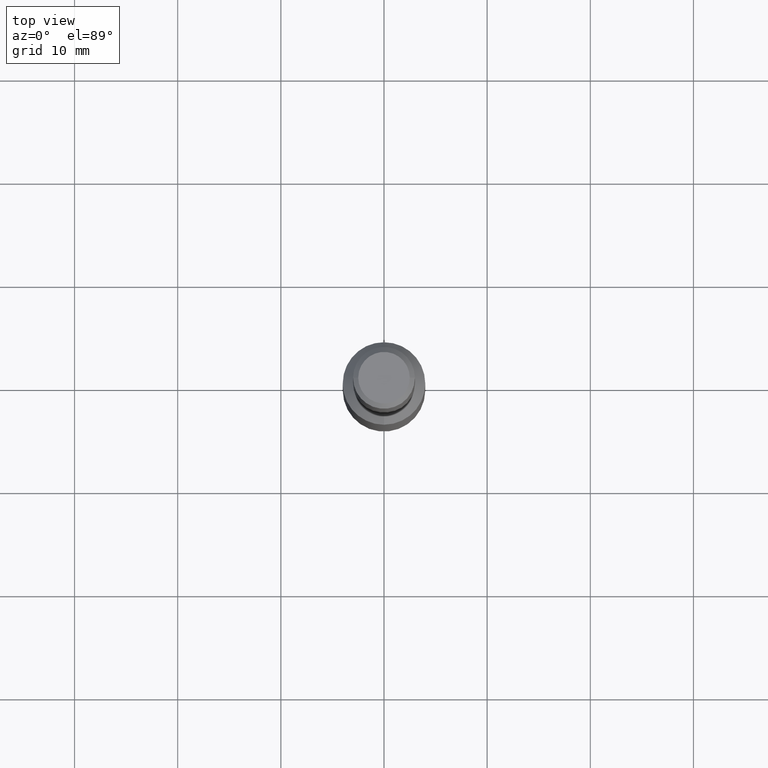
[diagram: clean part render]
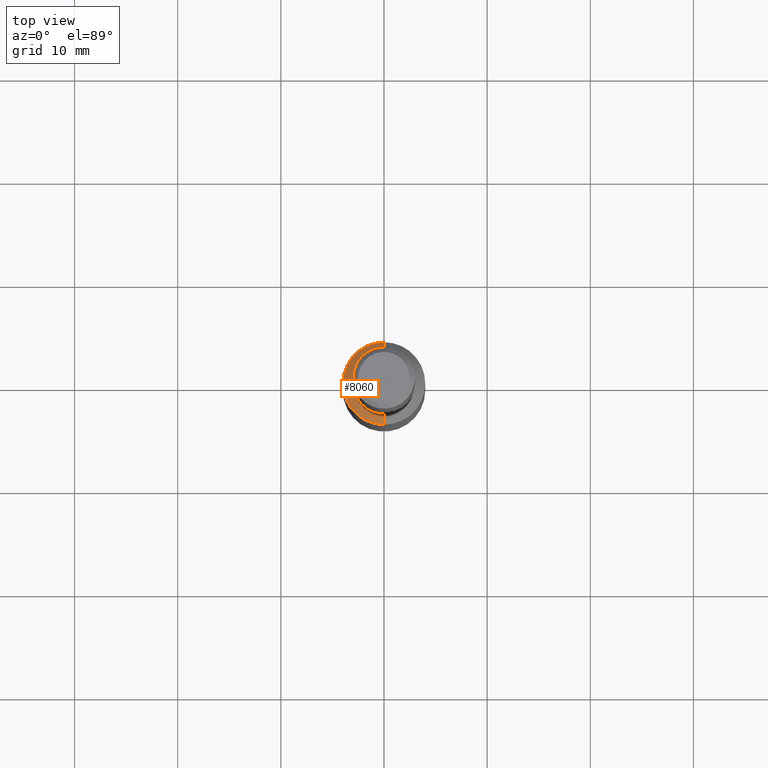
[diagram: same view with one face highlighted and labeled with its STEP entity id]
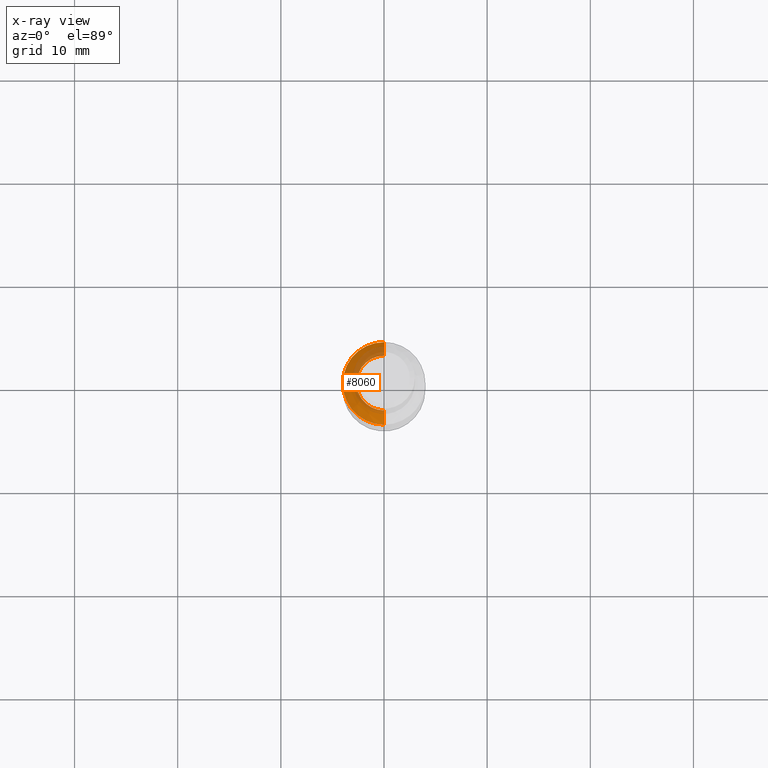
[diagram: x-ray of the same camera — body ghosted, the highlighted face saturated]
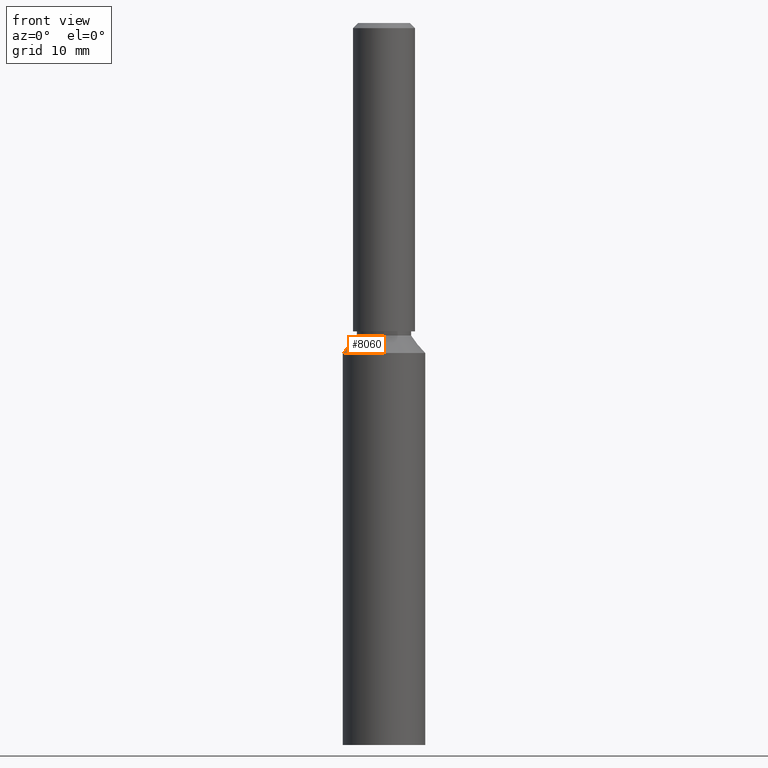
[diagram: same view with one face highlighted and labeled with its STEP entity id]
A machine part, top view. The second image highlights one B-rep face of the part: STEP entity #8060.
The next image is the same camera in x-ray: the body ghosted, the highlighted face saturated — about 30% of this face is hidden behind the body in this view.
A second angle (front view) of the same face is appended — the face is thin or edge-on in the first view.
In plain terms, the highlighted conical surface has half-angle 38.454 deg.
Its self-contained STEP definition (entity closure, byte-faithful):
#576 = EDGE_LOOP ( 'NONE', ( #9763, #10897, #4986, #8685, #4913 ) ) ;
#1038 = CARTESIAN_POINT ( 'NONE',  ( 0.0000000000000000000, -7.477419753763976000E-017, 38.00000000000000000 ) ) ;
#1325 = DIRECTION ( 'NONE',  ( -0.0000000000000000000, 1.967742040464204400E-018, -1.000000000000000000 ) ) ;
#1610 = DIRECTION ( 'NONE',  ( 0.0000000000000000000, 0.6218821436015845600, -0.7831108474982950700 ) ) ;
#2075 = VECTOR ( 'NONE', #10215, 1000.000000000000200 ) ;
#2601 = AXIS2_PLACEMENT_3D ( 'NONE', #10453, #1325, #11476 ) ;
#2665 = CARTESIAN_POINT ( 'NONE',  ( 0.0000000000000000000, 2.650000000000005200, 39.70000000000000300 ) ) ;
#2880 = LINE ( 'NONE', #7650, #5236 ) ;
#3121 = CARTESIAN_POINT ( 'NONE',  ( 0.0000000000000000000, 4.000000000000005300, 38.00000000000000000 ) ) ;
#3197 = AXIS2_PLACEMENT_3D ( 'NONE', #3708, #9657, #6775 ) ;
#3708 = CARTESIAN_POINT ( 'NONE',  ( 0.0000000000000000000, -7.811935900642893000E-017, 39.70000000000000300 ) ) ;
#4086 = DIRECTION ( 'NONE',  ( -0.0000000000000000000, 1.967742040464204400E-018, -1.000000000000000000 ) ) ;
#4370 = EDGE_CURVE ( 'NONE', #10545, #6575, #2880, .T. ) ;
#4522 = CONICAL_SURFACE ( 'NONE', #2601, 4.000000000000005300, 0.6711438354360067500 ) ;
#4563 = CIRCLE ( 'NONE', #12453, 4.000000000000005300 ) ;
#4907 = EDGE_CURVE ( 'NONE', #7473, #5155, #9502, .T. ) ;
#4913 = ORIENTED_EDGE ( 'NONE', *, *, #6639, .F. ) ;
#4986 = ORIENTED_EDGE ( 'NONE', *, *, #4370, .T. ) ;
#5155 = VERTEX_POINT ( 'NONE', #12549 ) ;
#5236 = VECTOR ( 'NONE', #1610, 1000.000000000000200 ) ;
#5569 = VERTEX_POINT ( 'NONE', #12519 ) ;
#6575 = VERTEX_POINT ( 'NONE', #3121 ) ;
#6639 = EDGE_CURVE ( 'NONE', #5155, #5569, #4563, .T. ) ;
#6775 = DIRECTION ( 'NONE',  ( 0.0000000000000000000, 1.000000000000000000, 0.0000000000000000000 ) ) ;
#6900 = CIRCLE ( 'NONE', #3197, 2.650000000000005200 ) ;
#7039 = AXIS2_PLACEMENT_3D ( 'NONE', #1038, #13058, #11047 ) ;
#7473 = VERTEX_POINT ( 'NONE', #7843 ) ;
#7650 = CARTESIAN_POINT ( 'NONE',  ( 0.0000000000000000000, 4.000000000000005300, 38.00000000000000000 ) ) ;
#7843 = CARTESIAN_POINT ( 'NONE',  ( 3.245314017740492400E-016, -2.650000000000005200, 39.70000000000000300 ) ) ;
#8060 = ADVANCED_FACE ( 'NONE', ( #9294 ), #4522, .T. ) ;
#8138 = CARTESIAN_POINT ( 'NONE',  ( 4.898587196589419700E-016, -4.000000000000005300, 38.00000000000000000 ) ) ;
#8202 = CARTESIAN_POINT ( 'NONE',  ( 0.0000000000000000000, -7.477419753763976000E-017, 38.00000000000000000 ) ) ;
#8685 = ORIENTED_EDGE ( 'NONE', *, *, #11907, .F. ) ;
#9294 = FACE_OUTER_BOUND ( 'NONE', #576, .T. ) ;
#9502 = LINE ( 'NONE', #8138, #2075 ) ;
#9657 = DIRECTION ( 'NONE',  ( -0.0000000000000000000, 1.967742040464204400E-018, -1.000000000000000000 ) ) ;
#9763 = ORIENTED_EDGE ( 'NONE', *, *, #4907, .F. ) ;
#10215 = DIRECTION ( 'NONE',  ( 7.615859766085753400E-017, -0.6218821436015845600, -0.7831108474982950700 ) ) ;
#10453 = CARTESIAN_POINT ( 'NONE',  ( 0.0000000000000000000, -7.477419753763976000E-017, 38.00000000000000000 ) ) ;
#10545 = VERTEX_POINT ( 'NONE', #2665 ) ;
#10897 = ORIENTED_EDGE ( 'NONE', *, *, #12003, .T. ) ;
#11047 = DIRECTION ( 'NONE',  ( 0.0000000000000000000, 1.000000000000000000, 0.0000000000000000000 ) ) ;
#11205 = DIRECTION ( 'NONE',  ( 0.0000000000000000000, 1.000000000000000000, 0.0000000000000000000 ) ) ;
#11476 = DIRECTION ( 'NONE',  ( 0.0000000000000000000, 1.000000000000000000, 0.0000000000000000000 ) ) ;
#11907 = EDGE_CURVE ( 'NONE', #5569, #6575, #12903, .T. ) ;
#12003 = EDGE_CURVE ( 'NONE', #7473, #10545, #6900, .T. ) ;
#12453 = AXIS2_PLACEMENT_3D ( 'NONE', #8202, #4086, #11205 ) ;
#12519 = CARTESIAN_POINT ( 'NONE',  ( -4.000000000000005300, 9.629649721936179300E-032, 38.00000000000000000 ) ) ;
#12549 = CARTESIAN_POINT ( 'NONE',  ( 4.898587196589419700E-016, -4.000000000000005300, 38.00000000000000000 ) ) ;
#12903 = CIRCLE ( 'NONE', #7039, 4.000000000000005300 ) ;
#13058 = DIRECTION ( 'NONE',  ( -0.0000000000000000000, 1.967742040464204400E-018, -1.000000000000000000 ) ) ;